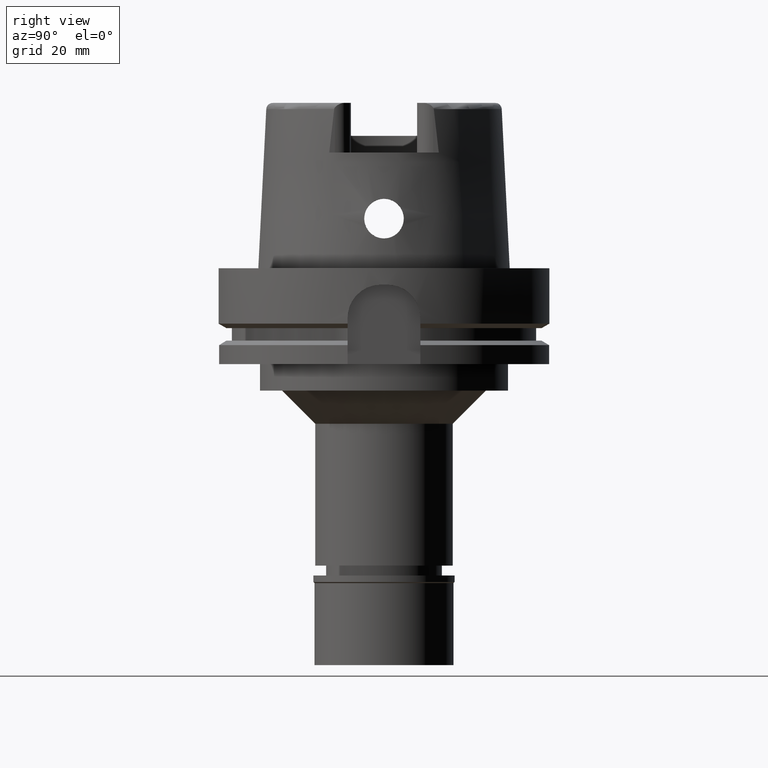
[diagram: clean part render]
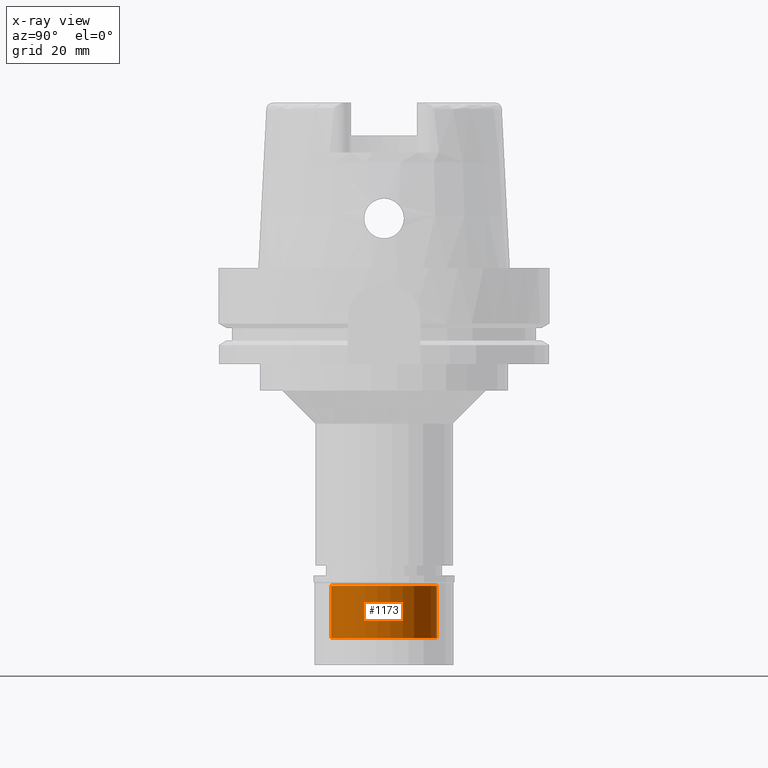
[diagram: x-ray — body ghosted, one internal face saturated and labeled with its STEP entity id]
A machine part, right view, then the same camera in x-ray: the body is ghosted and one INTERNAL B-rep face — a face not visible from any outside direction — is saturated and labeled: STEP entity #1173.
In plain terms, the highlighted cylindrical surface (partial cylindrical patch) has radius 16 mm, axis along (0, 0, -1).
Its self-contained STEP definition (entity closure, byte-faithful):
#18 = DIRECTION ( 'NONE',  ( 0.0000000000000000000, 0.0000000000000000000, 1.000000000000000000 ) ) ;
#812 = VERTEX_POINT ( 'NONE', #5370 ) ;
#973 = VECTOR ( 'NONE', #4126, 1000.000000000000000 ) ;
#1011 = ORIENTED_EDGE ( 'NONE', *, *, #2570, .F. ) ;
#1091 = CARTESIAN_POINT ( 'NONE',  ( 0.0000000000000000000, 16.00000000000000000, -18.89999999999999858 ) ) ;
#1109 = LINE ( 'NONE', #1449, #1395 ) ;
#1173 = ADVANCED_FACE ( 'NONE', ( #3091 ), #3922, .F. ) ;
#1395 = VECTOR ( 'NONE', #5251, 1000.000000000000000 ) ;
#1449 = CARTESIAN_POINT ( 'NONE',  ( 0.0000000000000000000, -16.00000000000000000, -18.89999999999999858 ) ) ;
#1633 = VERTEX_POINT ( 'NONE', #2201 ) ;
#1658 = CARTESIAN_POINT ( 'NONE',  ( 0.0000000000000000000, 0.0000000000000000000, 0.0000000000000000000 ) ) ;
#1831 = AXIS2_PLACEMENT_3D ( 'NONE', #3658, #5352, #3768 ) ;
#2193 = EDGE_LOOP ( 'NONE', ( #5067, #4955, #2588, #1011 ) ) ;
#2201 = CARTESIAN_POINT ( 'NONE',  ( 0.0000000000000000000, -16.00000000000000000, -3.100000000000000089 ) ) ;
#2432 = CARTESIAN_POINT ( 'NONE',  ( 0.0000000000000000000, 16.00000000000000000, -18.89999999999999858 ) ) ;
#2570 = EDGE_CURVE ( 'NONE', #2966, #4763, #4038, .T. ) ;
#2588 = ORIENTED_EDGE ( 'NONE', *, *, #5310, .T. ) ;
#2594 = CARTESIAN_POINT ( 'NONE',  ( 0.0000000000000000000, 0.0000000000000000000, -3.100000000000000089 ) ) ;
#2966 = VERTEX_POINT ( 'NONE', #2432 ) ;
#3013 = CARTESIAN_POINT ( 'NONE',  ( 0.0000000000000000000, 16.00000000000000000, -3.100000000000000089 ) ) ;
#3091 = FACE_OUTER_BOUND ( 'NONE', #2193, .T. ) ;
#3106 = CIRCLE ( 'NONE', #3359, 16.00000000000000000 ) ;
#3359 = AXIS2_PLACEMENT_3D ( 'NONE', #2594, #18, #5262 ) ;
#3658 = CARTESIAN_POINT ( 'NONE',  ( 0.0000000000000000000, 0.0000000000000000000, -18.89999999999999858 ) ) ;
#3768 = DIRECTION ( 'NONE',  ( 0.0000000000000000000, 1.000000000000000000, 0.0000000000000000000 ) ) ;
#3922 = CYLINDRICAL_SURFACE ( 'NONE', #4709, 16.00000000000000000 ) ;
#4038 = LINE ( 'NONE', #1091, #973 ) ;
#4126 = DIRECTION ( 'NONE',  ( 0.0000000000000000000, 0.0000000000000000000, 1.000000000000000000 ) ) ;
#4447 = EDGE_CURVE ( 'NONE', #2966, #812, #4699, .T. ) ;
#4659 = DIRECTION ( 'NONE',  ( 0.0000000000000000000, -1.000000000000000000, 0.0000000000000000000 ) ) ;
#4699 = CIRCLE ( 'NONE', #1831, 16.00000000000000000 ) ;
#4709 = AXIS2_PLACEMENT_3D ( 'NONE', #1658, #5220, #4659 ) ;
#4763 = VERTEX_POINT ( 'NONE', #3013 ) ;
#4839 = EDGE_CURVE ( 'NONE', #812, #1633, #1109, .T. ) ;
#4955 = ORIENTED_EDGE ( 'NONE', *, *, #4839, .T. ) ;
#5067 = ORIENTED_EDGE ( 'NONE', *, *, #4447, .T. ) ;
#5220 = DIRECTION ( 'NONE',  ( 0.0000000000000000000, 0.0000000000000000000, -1.000000000000000000 ) ) ;
#5251 = DIRECTION ( 'NONE',  ( 0.0000000000000000000, 0.0000000000000000000, 1.000000000000000000 ) ) ;
#5262 = DIRECTION ( 'NONE',  ( 0.0000000000000000000, -1.000000000000000000, 0.0000000000000000000 ) ) ;
#5310 = EDGE_CURVE ( 'NONE', #1633, #4763, #3106, .T. ) ;
#5352 = DIRECTION ( 'NONE',  ( 0.0000000000000000000, 0.0000000000000000000, -1.000000000000000000 ) ) ;
#5370 = CARTESIAN_POINT ( 'NONE',  ( 0.0000000000000000000, -16.00000000000000000, -18.89999999999999858 ) ) ;